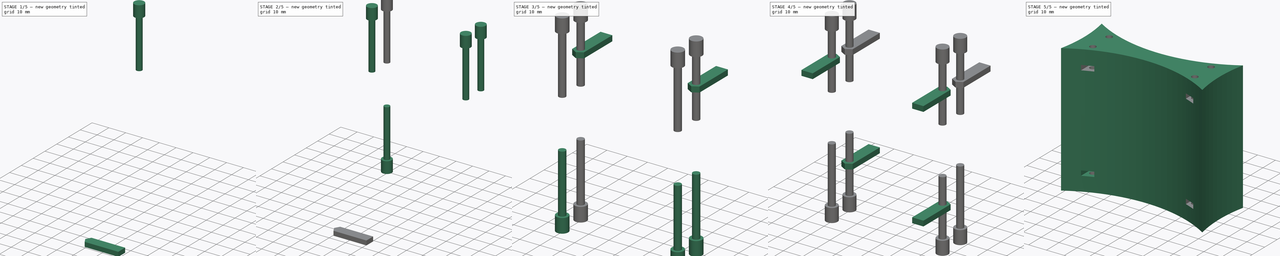
[diagram: build sequence overview — one tinted view per stage of 5, left to right]
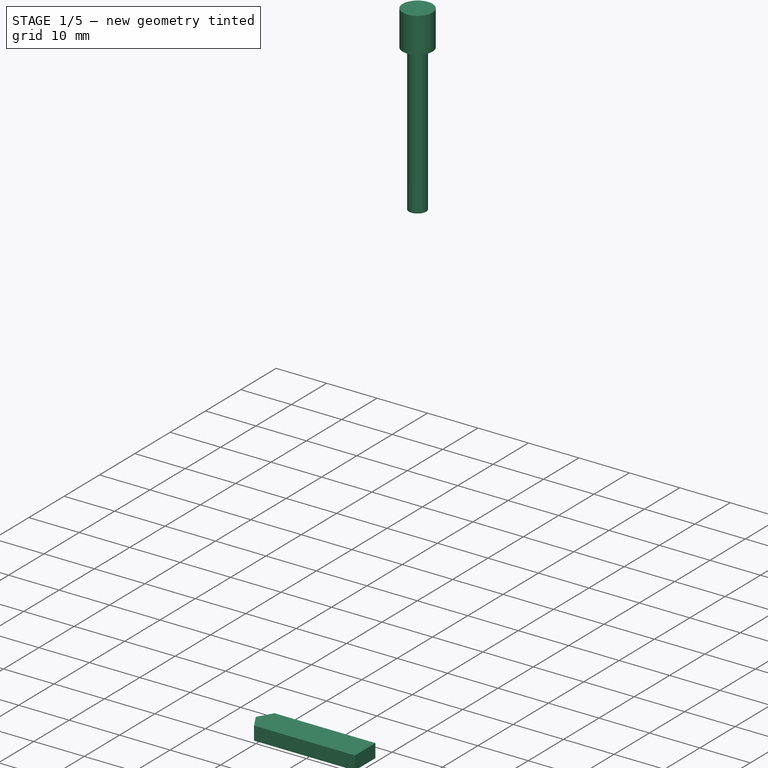
[diagram: stage 1 of 5 — iso view after this stage's code; geometry added in this stage tinted green]
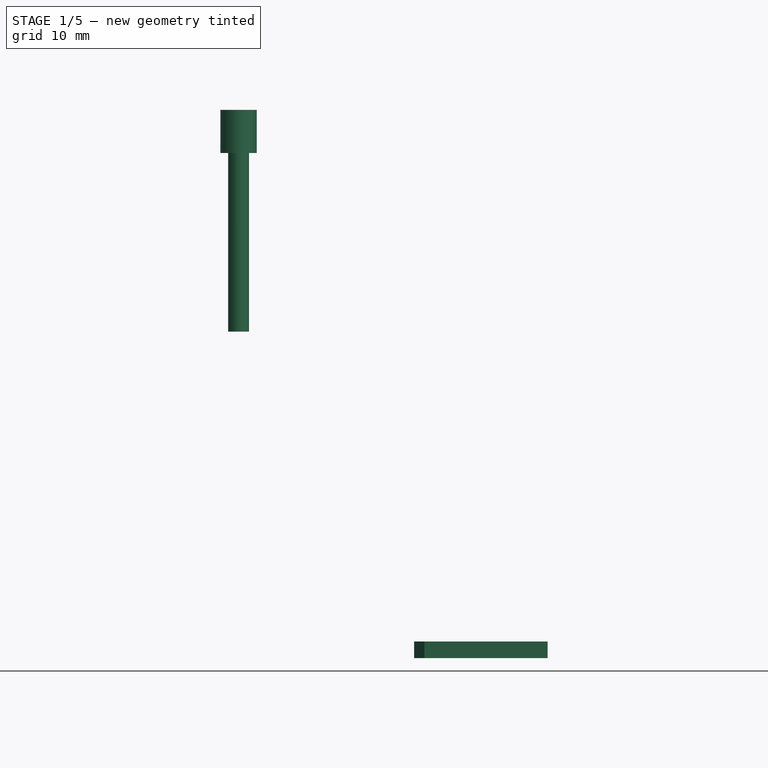
[diagram: stage 1 of 5 — front view after this stage's code; geometry added in this stage tinted green]
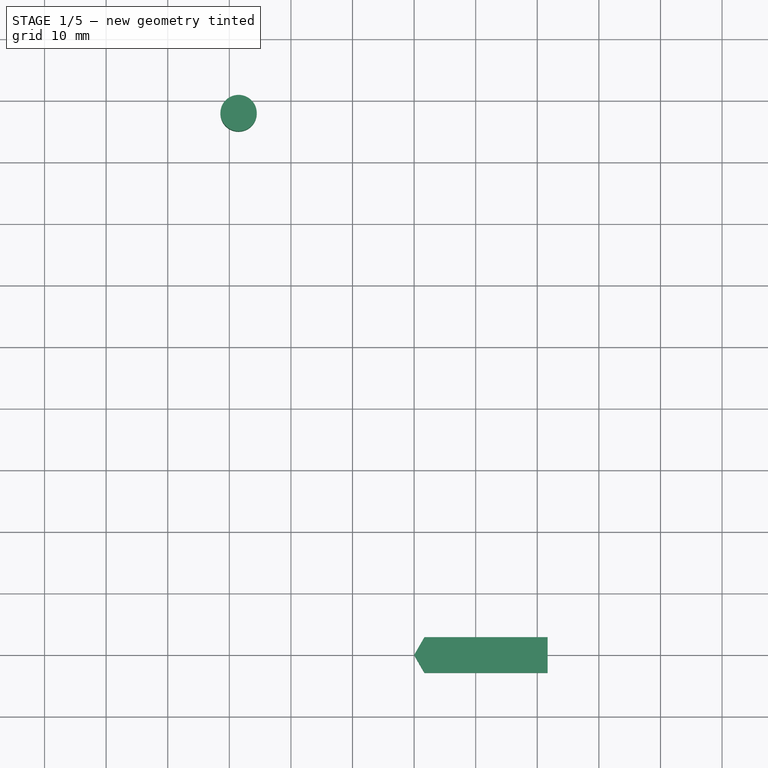
[diagram: stage 1 of 5 — top view after this stage's code; geometry added in this stage tinted green]
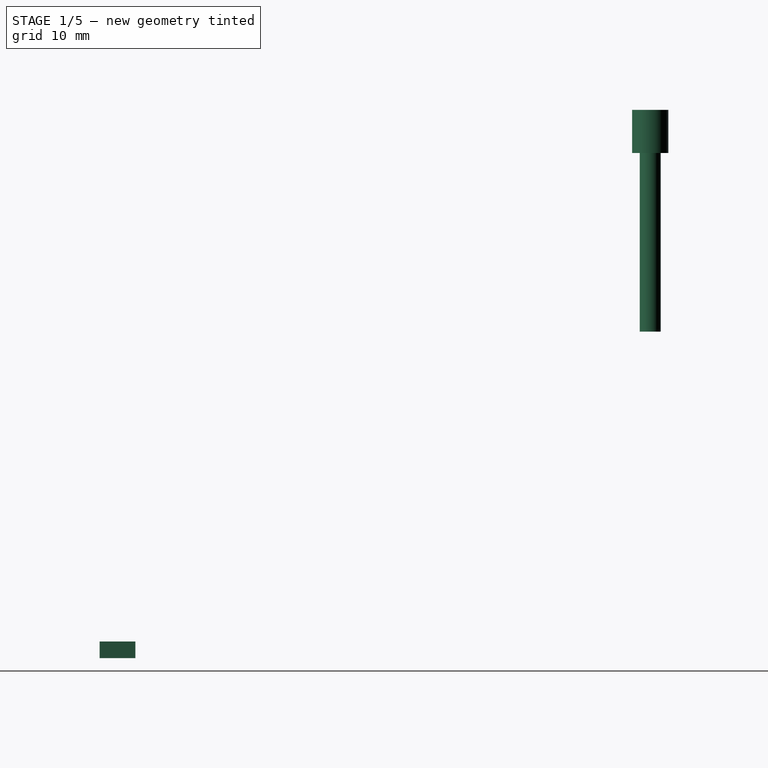
[diagram: stage 1 of 5 — right view after this stage's code; geometry added in this stage tinted green]
FCSTD DOCUMENT  (FreeCAD 0.16R6460 (Git))
Label: Art2Union
License: All rights reserved
LicenseURL: http://en.wikipedia.org/wiki/All_rights_reserved
objects: Part::FeaturePython×16, Part::Cylinder×2, Part::MultiFuse×2, Sketcher::SketchObject×2, PartDesign::Pad×2, Part::Cut×1, App::DocumentObjectGroup×1
note: 27 computed .brp shape members not serialized (recipe doc carries the construction recipe); baked Part::Feature solids carry a one-line shape summary decoded from their .brp

FEATURE [Part::Cylinder] Cylinder  label="M3BoltHead"
  Angle = 360
  Height = 7
  Radius = 2.95
FEATURE [Part::Cylinder] Cylinder001  label="M3BoltBody"
  Angle = 360
  Height = 30
  Placement = pos=(0,0,6) rot=(0,0,1;0rad)
  Radius = 1.7
FEATURE [Part::MultiFuse] Fusion  label="M3Bolt"
  Shapes = -> [Cylinder001,Cylinder]
FEATURE [Sketcher::SketchObject] Sketch003  label="M3NutHousingSketch"
  sketch-geometry (5):
    g0: LineSegment StartX=0 StartY=0 StartZ=0 EndX=1.67432 EndY=2.9 EndZ=0
    g1: LineSegment StartX=1.67432 StartY=2.9 StartZ=0 EndX=21.6743 EndY=2.9 EndZ=0
    g2: LineSegment StartX=21.6743 StartY=2.9 StartZ=0 EndX=21.6743 EndY=-2.9 EndZ=0
    g3: LineSegment StartX=21.6743 StartY=-2.9 StartZ=0 EndX=1.67432 EndY=-2.9 EndZ=0
    g4: LineSegment StartX=1.67432 StartY=-2.9 StartZ=0 EndX=0 EndY=0 EndZ=0
  constraints (14):
    c: Coincident(g-1,g0)
    c: Coincident(g0,g1)
    c: Horizontal(g1)
    c: Coincident(g1,g2)
    c: Vertical(g2)
    c: Coincident(g2,g3)
    c: Horizontal(g3)
    c: Coincident(g3,g4)
    c: Coincident(g4,g0)
    c: Equal(g3,g1)
    c: Equal(g4,g0)
    c: DistanceY(g2) = -5.8
    c: Angle(g-1,g0) = 1.0472
    c: DistanceX(g3) = -20
FEATURE [PartDesign::Pad] Pad002  label="M3NutHousing"
  Length = 2.7
  Length2 = 100
  Sketch = -> Sketch003
  Type = 0
FEATURE [Part::FeaturePython] Clone180  label="Clone of M3Bolt052"  # Draft clone (typed FeaturePython)
  Objects = -> [Fusion]
  Placement = pos=(-28.5,86.5,89) rot=(0,1,0;3.14159rad)
  Scale = (1,1,1)
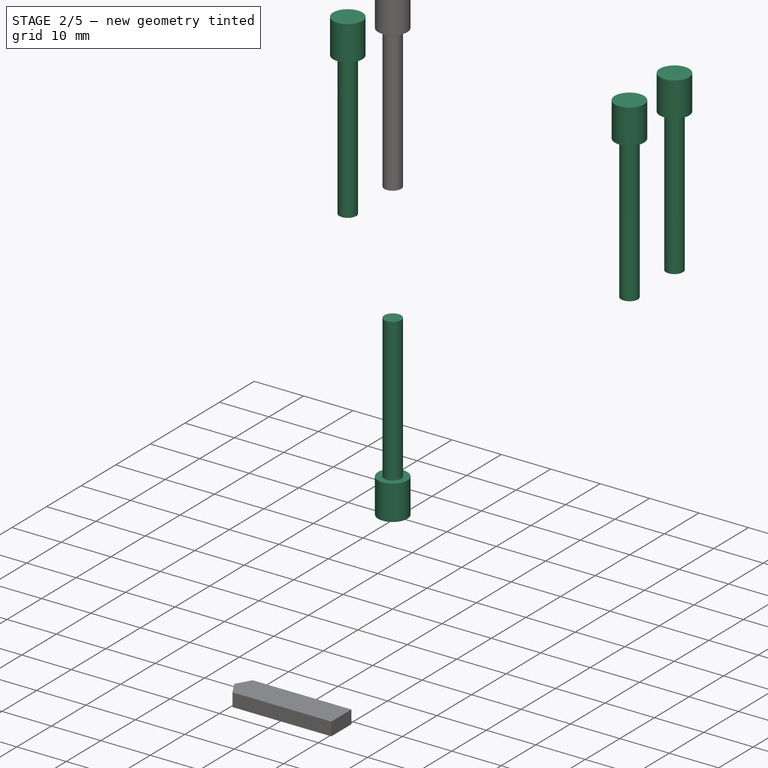
[diagram: stage 2 of 5 — iso view after this stage's code; geometry added in this stage tinted green]
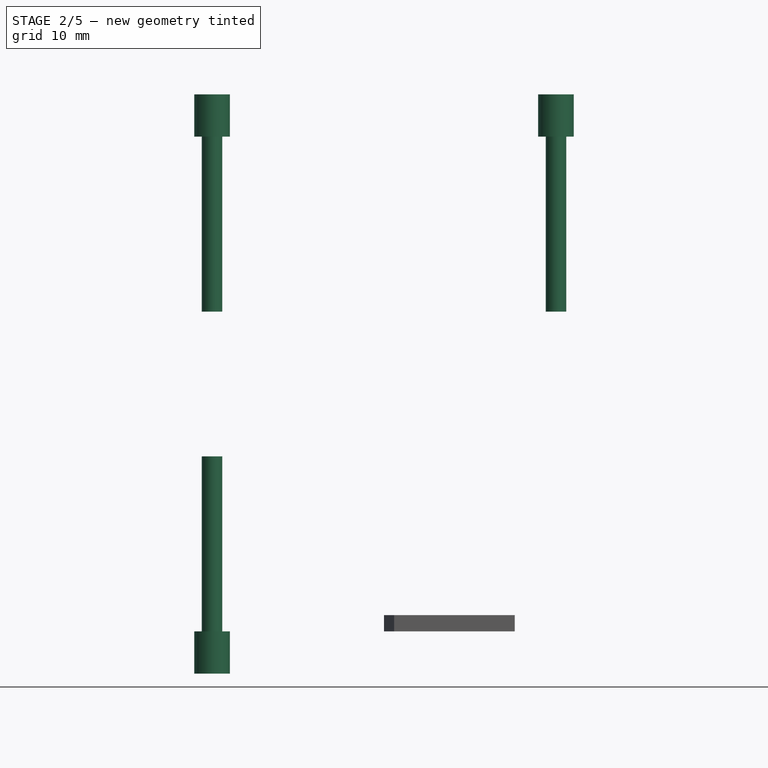
[diagram: stage 2 of 5 — front view after this stage's code; geometry added in this stage tinted green]
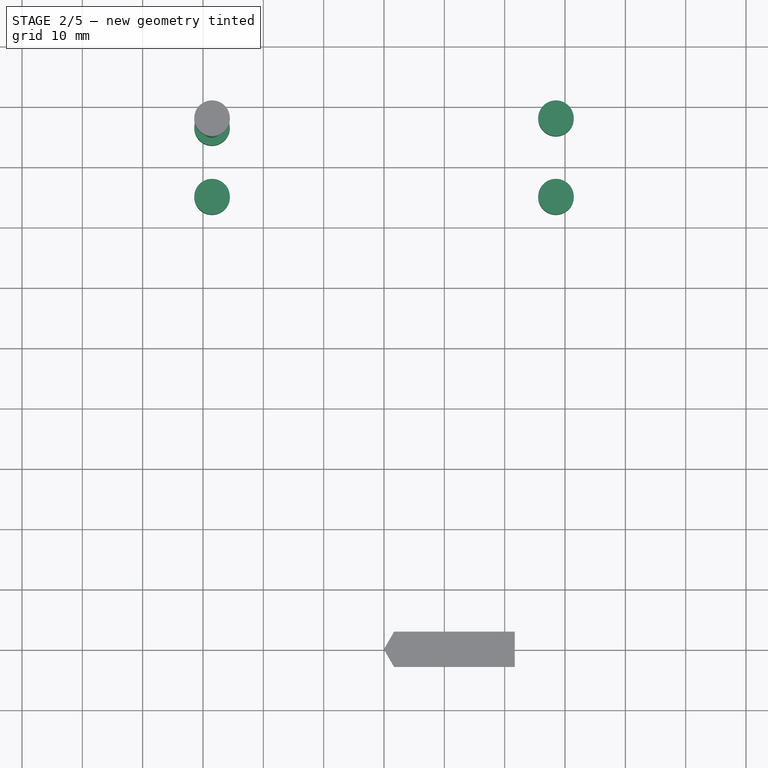
[diagram: stage 2 of 5 — top view after this stage's code; geometry added in this stage tinted green]
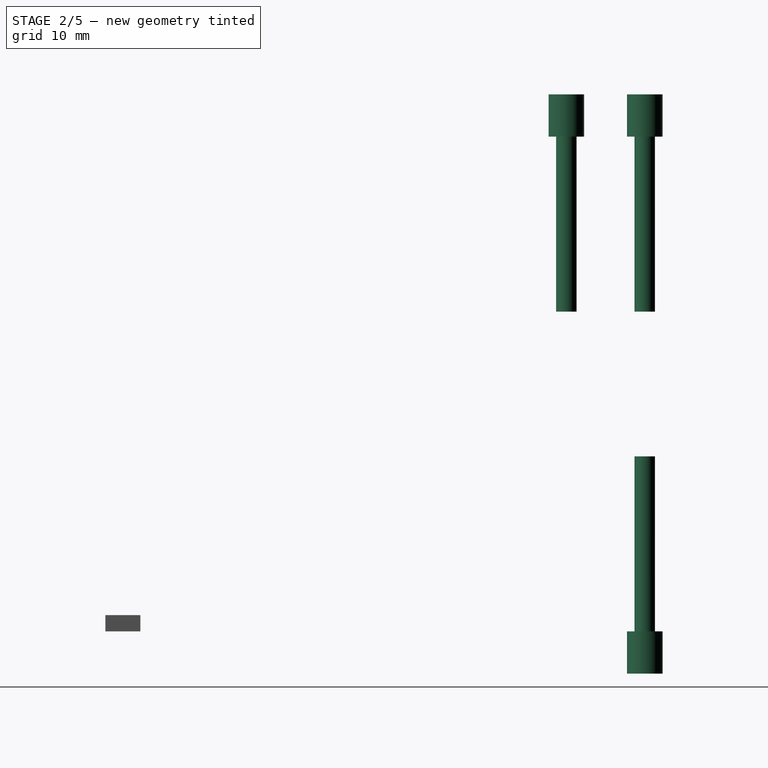
[diagram: stage 2 of 5 — right view after this stage's code; geometry added in this stage tinted green]
FEATURE [Part::FeaturePython] Clone176  label="Clone of M3Bolt048"  # Draft clone (typed FeaturePython)
  Objects = -> [Fusion]
  Placement = pos=(-28.5,86.5,-7) rot=(0,0,1;0rad)
  Scale = (1,1,1)
FEATURE [Part::FeaturePython] Clone177  label="Clone of M3Bolt049"  # Draft clone (typed FeaturePython)
  Objects = -> [Fusion]
  Placement = pos=(28.5,73.5,89) rot=(0,1,0;3.14159rad)
  Scale = (1,1,1)
FEATURE [Part::FeaturePython] Clone178  label="Clone of M3Bolt050"  # Draft clone (typed FeaturePython)
  Objects = -> [Fusion]
  Placement = pos=(-28.5,73.5,89) rot=(0,1,0;3.14159rad)
  Scale = (1,1,1)
FEATURE [Part::FeaturePython] Clone179  label="Clone of M3Bolt051"  # Draft clone (typed FeaturePython)
  Objects = -> [Fusion]
  Placement = pos=(28.5,86.5,89) rot=(0,1,0;3.14159rad)
  Scale = (1,1,1)
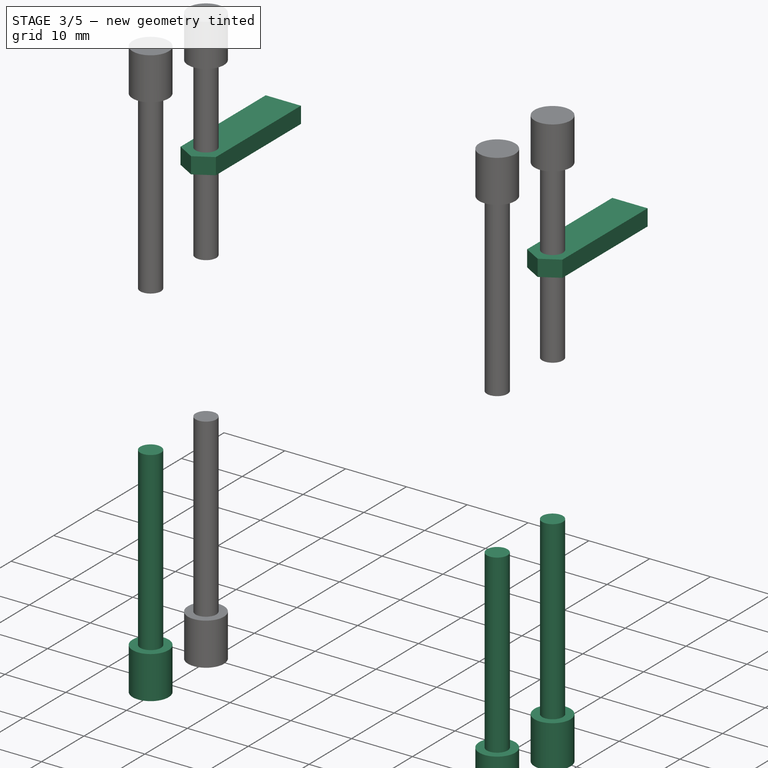
[diagram: stage 3 of 5 — iso view after this stage's code; geometry added in this stage tinted green]
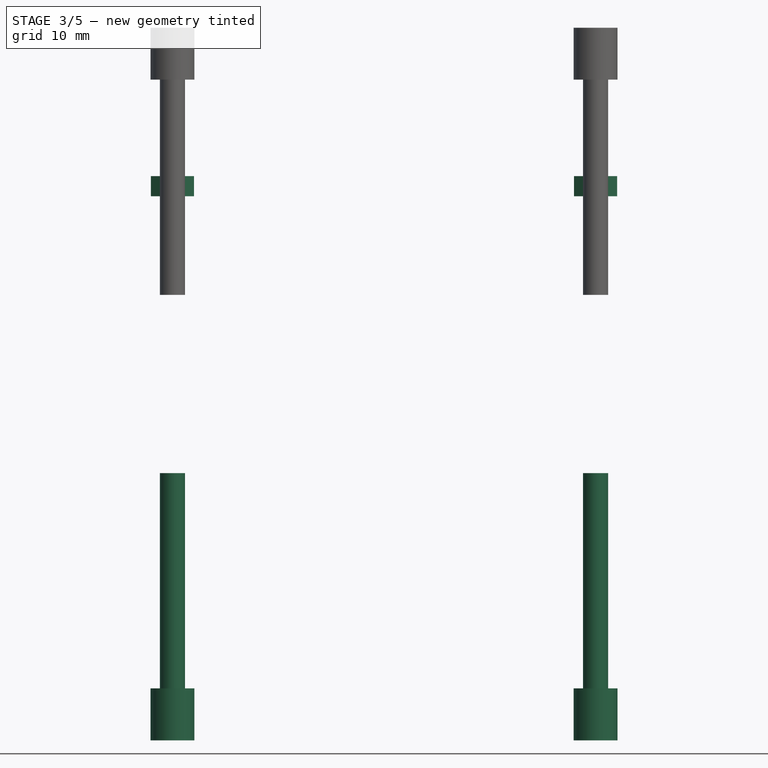
[diagram: stage 3 of 5 — front view after this stage's code; geometry added in this stage tinted green]
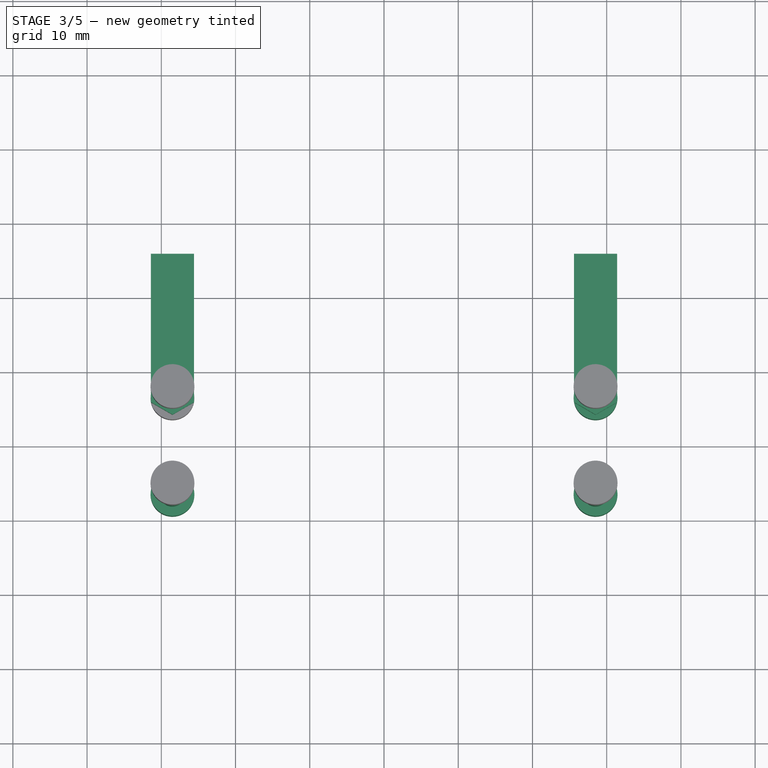
[diagram: stage 3 of 5 — top view after this stage's code; geometry added in this stage tinted green]
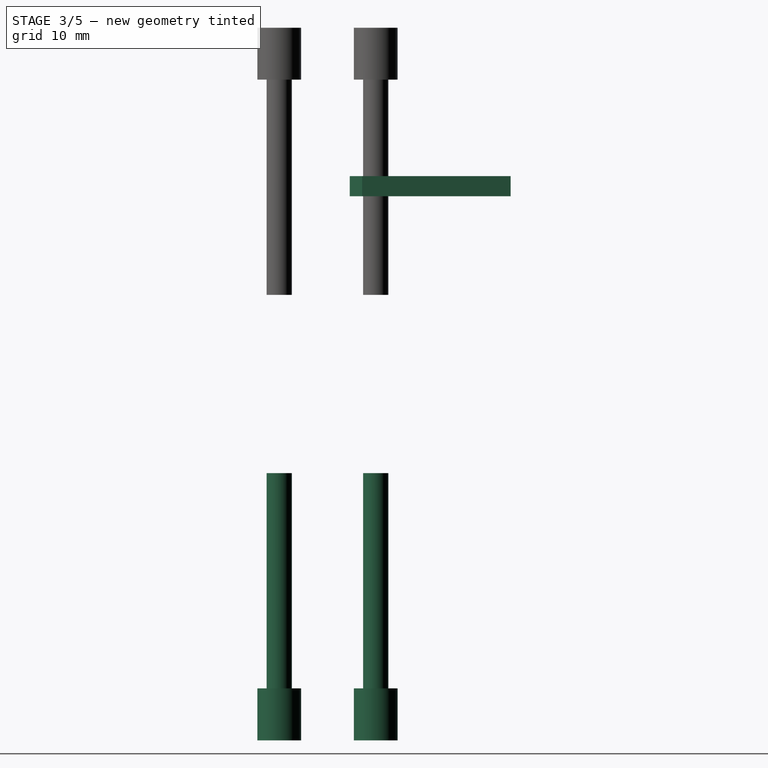
[diagram: stage 3 of 5 — right view after this stage's code; geometry added in this stage tinted green]
FEATURE [Part::FeaturePython] Clone171  label="Clone of M3NutHousing016"  # Draft clone (typed FeaturePython)
  Objects = -> [Pad002]
  Placement = pos=(28.5,83,69) rot=(0.707107,0.707107,0;3.14159rad)
  Scale = (1,1,1)
FEATURE [Part::FeaturePython] Clone172  label="Clone of M3NutHousing017"  # Draft clone (typed FeaturePython)
  Objects = -> [Pad002]
  Placement = pos=(-28.5,83,69) rot=(0.707107,0.707107,0;3.14159rad)
  Scale = (1,1,1)
FEATURE [Part::FeaturePython] Clone173  label="Clone of M3Bolt045"  # Draft clone (typed FeaturePython)
  Objects = -> [Fusion]
  Placement = pos=(28.5,86.5,-7) rot=(0,0,1;0rad)
  Scale = (1,1,1)
FEATURE [Part::FeaturePython] Clone174  label="Clone of M3Bolt046"  # Draft clone (typed FeaturePython)
  Objects = -> [Fusion]
  Placement = pos=(-28.5,73.5,-7) rot=(0,0,1;0rad)
  Scale = (1,1,1)
FEATURE [Part::FeaturePython] Clone175  label="Clone of M3Bolt047"  # Draft clone (typed FeaturePython)
  Objects = -> [Fusion]
  Placement = pos=(28.5,73.5,-7) rot=(0,0,1;0rad)
  Scale = (1,1,1)
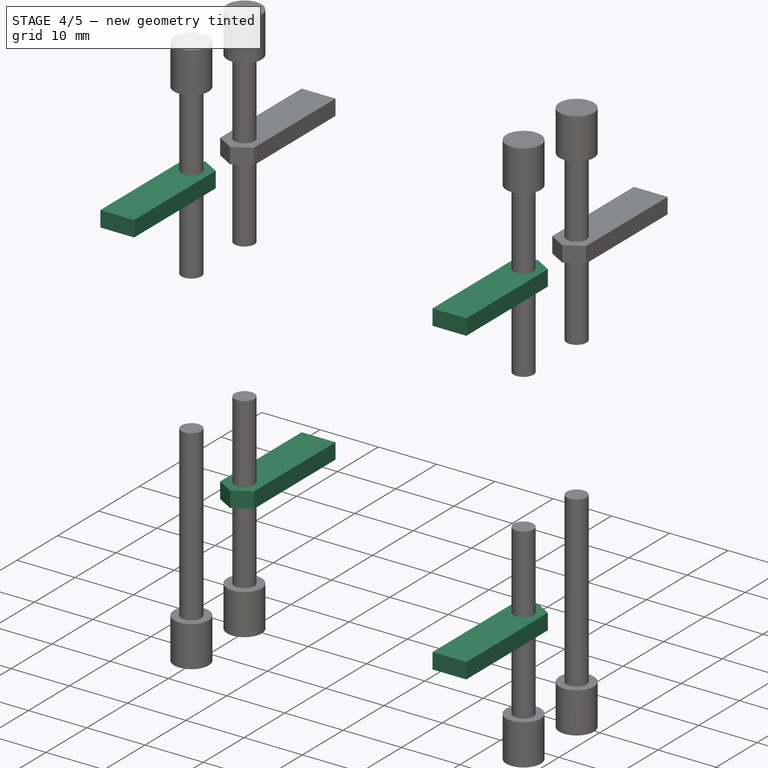
[diagram: stage 4 of 5 — iso view after this stage's code; geometry added in this stage tinted green]
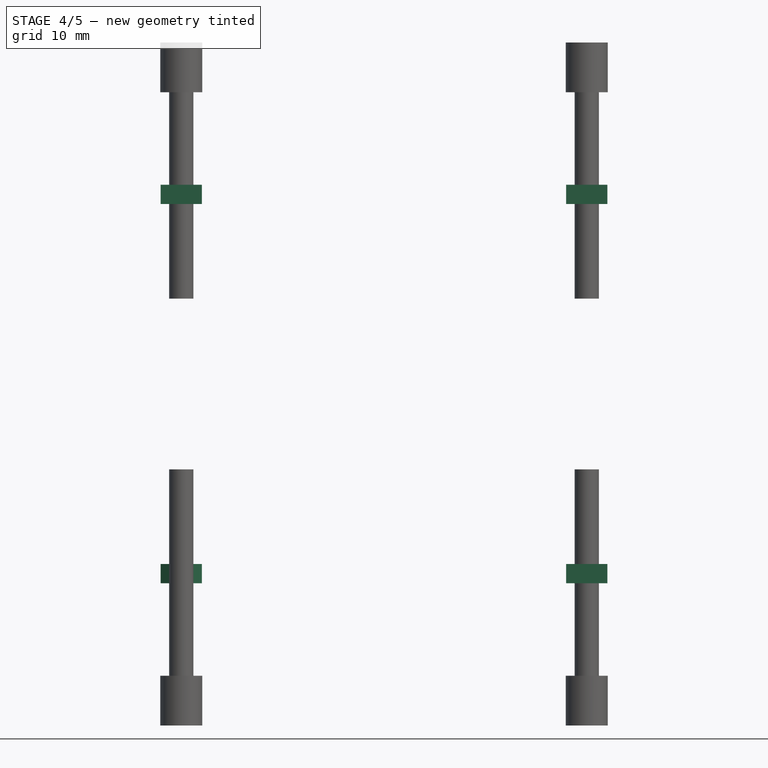
[diagram: stage 4 of 5 — front view after this stage's code; geometry added in this stage tinted green]
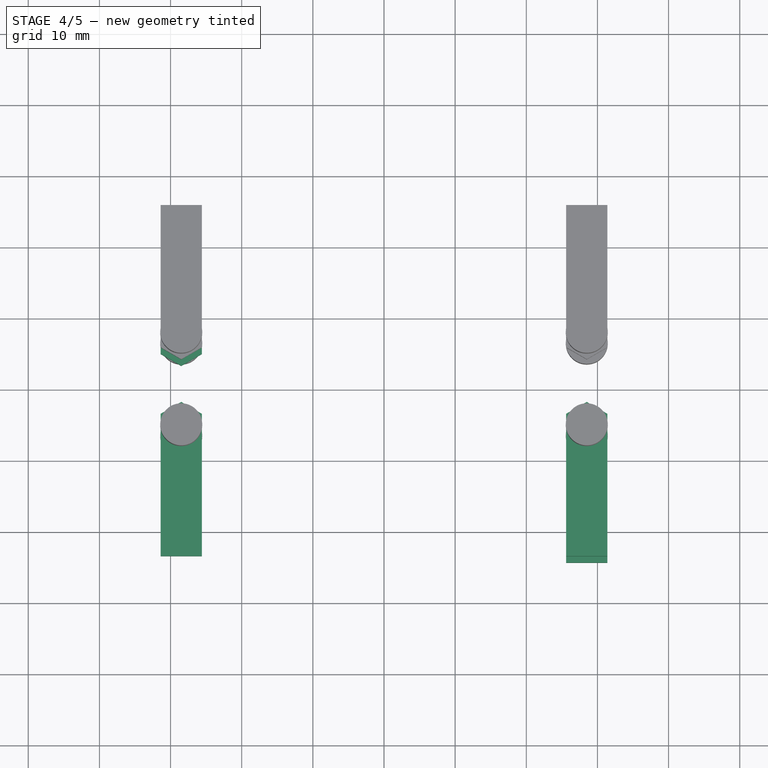
[diagram: stage 4 of 5 — top view after this stage's code; geometry added in this stage tinted green]
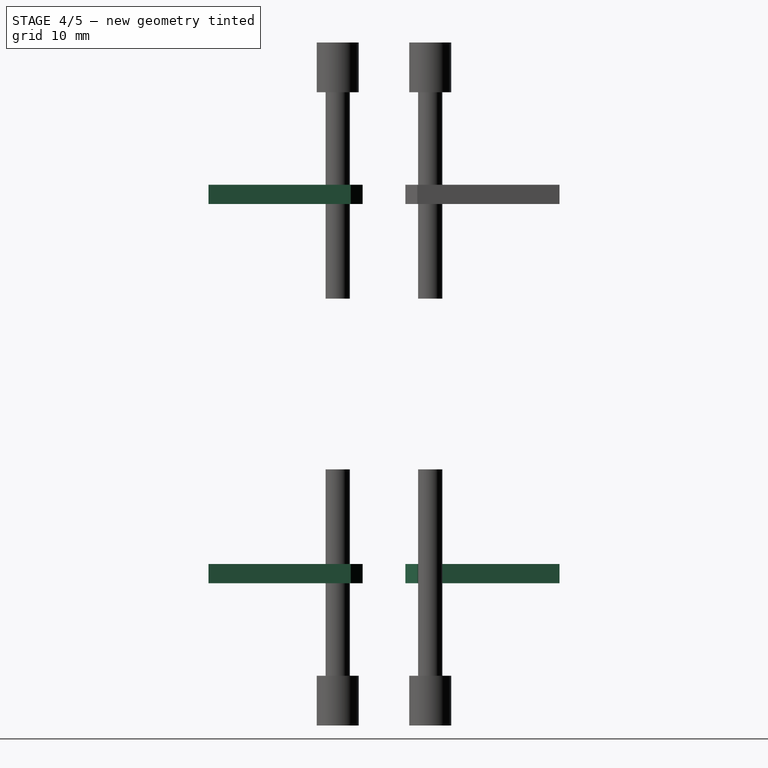
[diagram: stage 4 of 5 — right view after this stage's code; geometry added in this stage tinted green]
FEATURE [Part::FeaturePython] Clone167  label="Clone of M3NutHousing012"  # Draft clone (typed FeaturePython)
  Objects = -> [Pad002]
  Placement = pos=(28.5,77,13) rot=(0,0,-1;1.5708rad)
  Scale = (1,1,1)
FEATURE [Part::FeaturePython] Clone168  label="Clone of M3NutHousing013"  # Draft clone (typed FeaturePython)
  Objects = -> [Pad002]
  Placement = pos=(-28.5,83,13) rot=(0,0,1;1.5708rad)
  Scale = (1,1,1)
FEATURE [Part::FeaturePython] Clone169  label="Clone of M3NutHousing014"  # Draft clone (typed FeaturePython)
  Objects = -> [Pad002]
  Placement = pos=(28.5,77,69) rot=(0.707107,-0.707107,0;3.14159rad)
  Scale = (1,1,1)
FEATURE [Part::FeaturePython] Clone170  label="Clone of M3NutHousing015"  # Draft clone (typed FeaturePython)
  Objects = -> [Pad002]
  Placement = pos=(-28.5,77,69) rot=(0.707107,-0.707107,0;3.14159rad)
  Scale = (1,1,1)
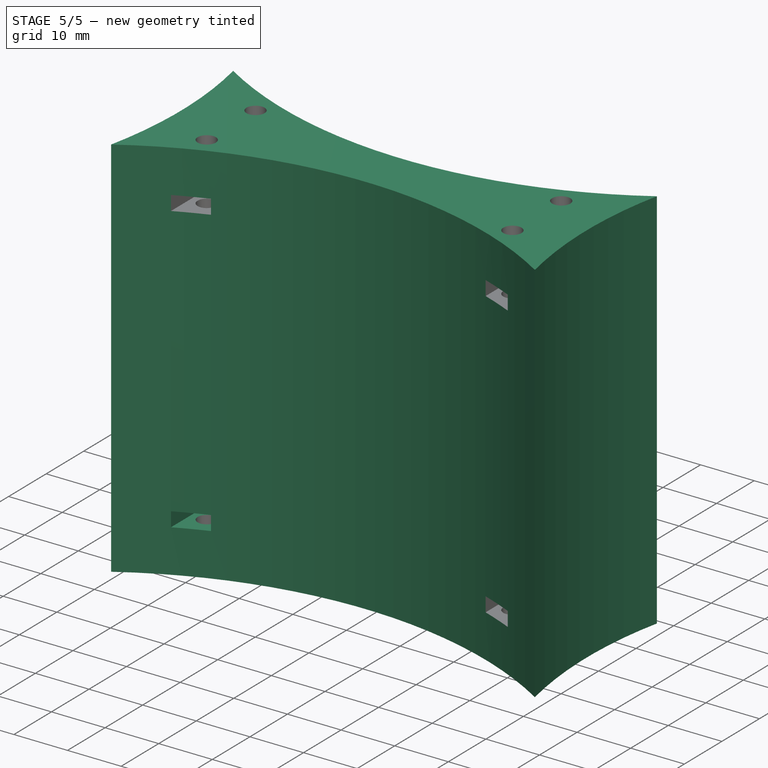
[diagram: stage 5 of 5 — iso view after this stage's code; geometry added in this stage tinted green]
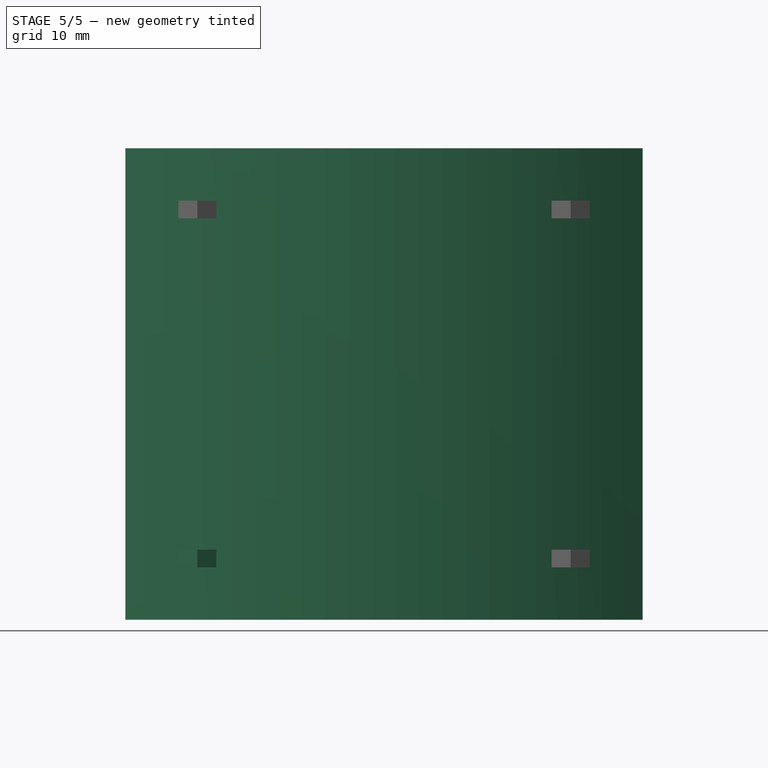
[diagram: stage 5 of 5 — front view after this stage's code; geometry added in this stage tinted green]
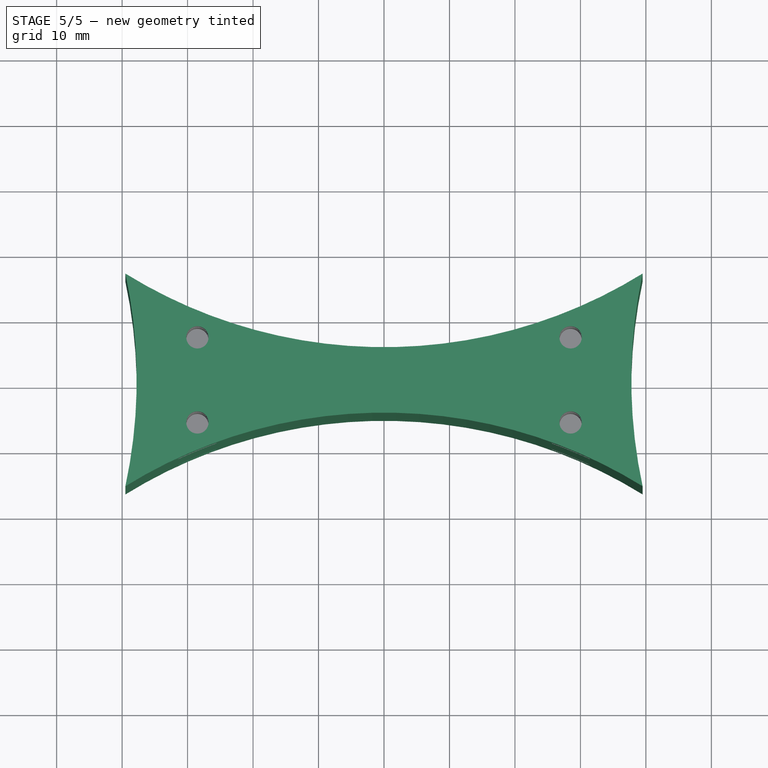
[diagram: stage 5 of 5 — top view after this stage's code; geometry added in this stage tinted green]
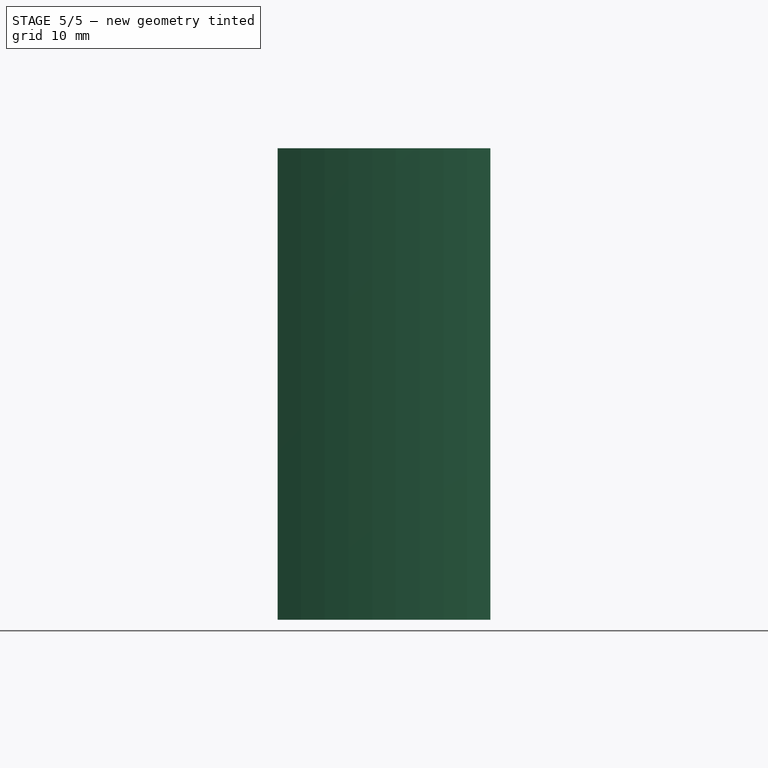
[diagram: stage 5 of 5 — right view after this stage's code; geometry added in this stage tinted green]
FEATURE [Sketcher::SketchObject] Sketch029
  Placement = pos=(0,0,5) rot=(0,0,1;0rad)
  sketch-geometry (7):
    g0: ArcOfCircle CenterX=0 CenterY=0 CenterZ=0 NormalX=0 NormalY=0 NormalZ=1 Radius=75 StartAngle=1.01612 EndAngle=2.12547
    g1: ArcOfCircle CenterX=0 CenterY=160 CenterZ=0 NormalX=0 NormalY=0 NormalZ=1 Radius=75 StartAngle=4.15771 EndAngle=5.26706
    g2: ArcOfCircle CenterX=115 CenterY=80 CenterZ=0 NormalX=0 NormalY=0 NormalZ=1 Radius=77.2278 StartAngle=2.92966 EndAngle=3.35352
    g3: ArcOfCircle CenterX=-115 CenterY=80 CenterZ=0 NormalX=0 NormalY=0 NormalZ=1 Radius=77.2278 StartAngle=6.07126 EndAngle=6.49511
    g4: LineSegment [constr] StartX=-115 StartY=80 StartZ=0 EndX=115 EndY=80 EndZ=0
    g5: LineSegment [constr] StartX=-39.5 StartY=96.2446 StartZ=0 EndX=-39.5 EndY=63.7554 EndZ=0
    g6: LineSegment [constr] StartX=39.5 StartY=96.2446 StartZ=0 EndX=39.5 EndY=63.7554 EndZ=0
  constraints (21):
    c: Coincident(g0,g-1)
    c: PointOnObject(g1,g-2)
    c: Coincident(g2,g1)
    c: Coincident(g2,g0)
    c: Coincident(g3,g1)
    c: Coincident(g3,g0)
    c: Equal(g1,g0)
    c: Equal(g3,g2)
    c: Coincident(g4,g3)
    c: Coincident(g4,g2)
    c: Horizontal(g4)
    c: Radius(g0) = 75
    c: DistanceY(g-1,g1) = 160
    c: Coincident(g5,g1)
    c: Coincident(g5,g0)
    c: Vertical(g5)
    c: Coincident(g6,g1)
    c: Coincident(g6,g0)
    c: Equal(g6,g5)
    c: DistanceX(g1,g1) = 79
    c: DistanceX(g-1,g2) = 115
FEATURE [PartDesign::Pad] Pad021
  Length = 72
  Length2 = 100
  Placement = pos=(0,0,5) rot=(0,0,1;0rad)
  Sketch = -> Sketch029
  Type = 0
FEATURE [Part::FeaturePython] Clone165  label="Clone of M3NutHousing010"  # Draft clone (typed FeaturePython)
  Objects = -> [Pad002]
  Placement = pos=(28.5,83,13) rot=(0,0,1;1.5708rad)
  Scale = (1,1,1)
FEATURE [Part::FeaturePython] Clone166  label="Clone of M3NutHousing011"  # Draft clone (typed FeaturePython)
  Objects = -> [Pad002]
  Placement = pos=(-28.5,77,13) rot=(0,0,-1;1.5708rad)
  Scale = (1,1,1)
FEATURE [Part::MultiFuse] Fusion066
  Shapes = -> [Clone165,Clone171,Clone167,Clone168,Clone172,Clone174,Clone177,Clone169,Clone170,Clone178,Clone176,Clone180,Clone173,Clone179,Clone175,Clone166]
FEATURE [Part::Cut] Cut058  label="Art2Union"
  Base = -> Pad021
  Tool = -> Fusion066
FEATURE [App::DocumentObjectGroup] Group  label="Master"
  Group = -> [Fusion,Pad002]
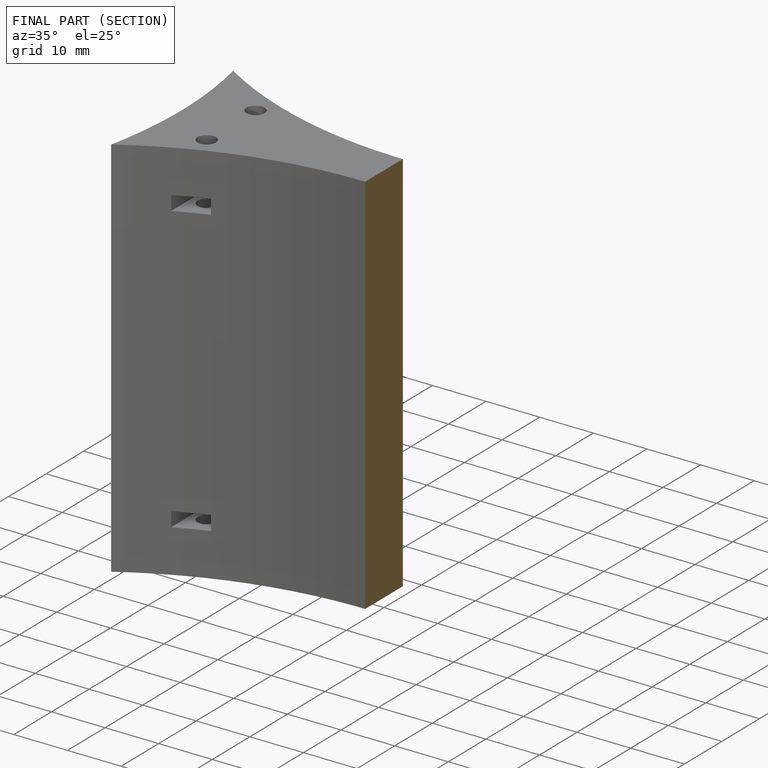
[diagram: finished part — half-section view (interior)]
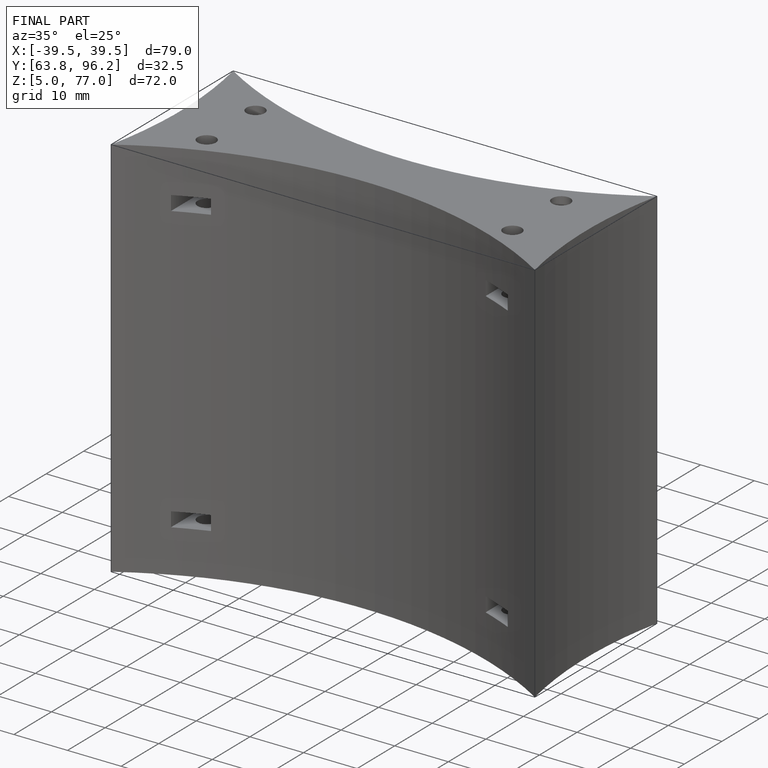
[diagram: finished part — iso view with bounding-box wireframe]
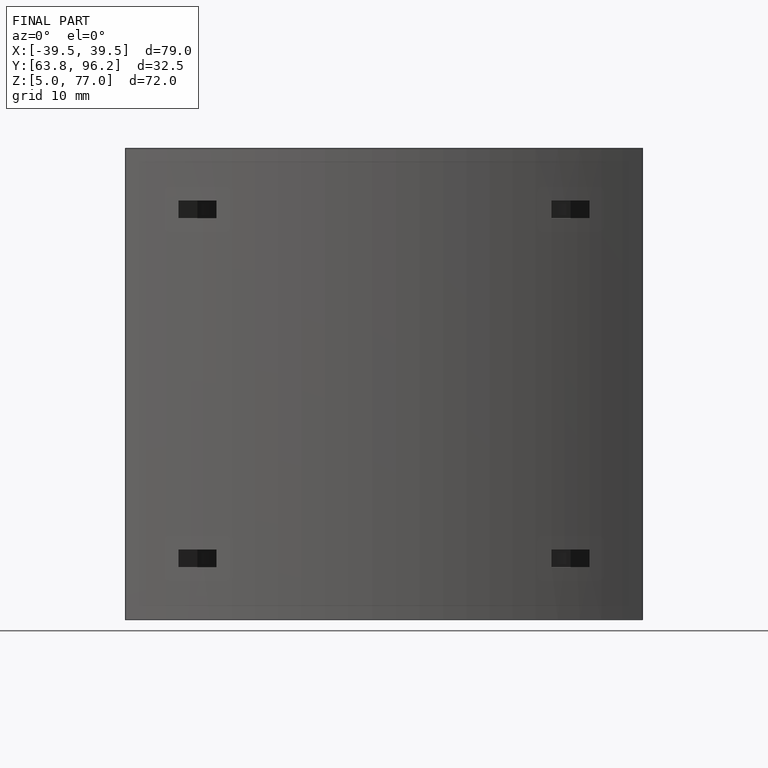
[diagram: finished part — front view with bounding-box wireframe]
